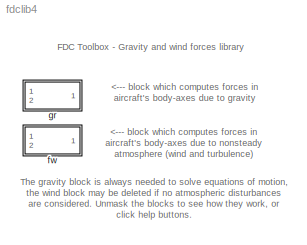
MODEL fdclib4
KIND library
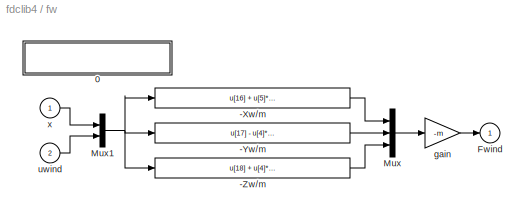
BLOCK [SubSystem] fw
  MaskDescription = Forces due to non-steady atmosphere.
  MaskDisplay = disp('Fwind')
  MaskHelp = eval('fdchelp fwind')
  MaskIconFrame = on
  MaskIconOpaque = on
  MaskIconRotate = none
  MaskIconUnits = autoscale
  MaskPromptString = Mass of the aircraft [kg]:
  MaskStyleString = edit
  MaskType = fwind
  MaskValueString = GM1(10)
  MaskVariables = m=@1;
  Ports = [2, 1, 0, 0, 0]
  ShowPortLabels = off
BLOCK [Fcn] fw/-Xw//m
  Expr = u[16] + u[5]*u[15] - u[6]*u[14]
BLOCK [Fcn] fw/-Yw//m
  Expr = u[17] - u[4]*u[15] + u[6]*u[13]
BLOCK [Fcn] fw/-Zw//m
  Expr = u[18] + u[4]*u[14] - u[5]*u[13]
BLOCK [SubSystem] fw/0
  MaskDisplay = disp('FWIND\\nM.O. Rauw, Dec. 1996')
  MaskIconFrame = on
  MaskIconOpaque = on
  MaskIconRotate = none
  MaskIconUnits = autoscale
  OpenFcn = fdchelp fwind
  Ports = [0, 0, 0, 0, 0]
  ShowPortLabels = off
BLOCK [Outport] fw/Fwind
  InitialOutput = 0
  OutputWhenDisabled = held
  Port = 1
BLOCK [Mux] fw/Mux
  Inputs = 3
  Ports = [3, 1, 0, 0, 0]
BLOCK [Mux] fw/Mux1
  Inputs = [12 6]
  Ports = [2, 1, 0, 0, 0]
BLOCK [Gain] fw/gain
  Gain = -m
BLOCK [Inport] fw/uwind
  Port = 2
  PortWidth = -1
  SampleTime = -1
BLOCK [Inport] fw/x
  Port = 1
  PortWidth = -1
  SampleTime = -1
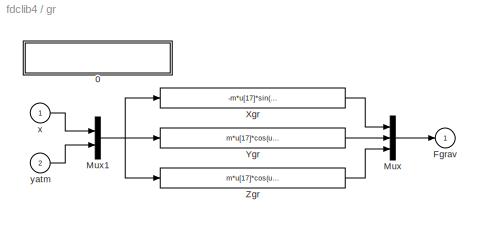
BLOCK [SubSystem] gr
  MaskDescription = Gravity forces.
  MaskDisplay = disp('Gravity')
  MaskHelp = eval('fdchelp gravity')
  MaskIconFrame = on
  MaskIconOpaque = on
  MaskIconRotate = none
  MaskIconUnits = autoscale
  MaskPromptString = Mass of the aircraft [kg]:
  MaskStyleString = edit
  MaskType = Gravity
  MaskValueString = GM1(10)
  MaskVariables = m=@1;
  Ports = [2, 1, 0, 0, 0]
  ShowPortLabels = off
BLOCK [SubSystem] gr/0
  MaskDisplay = disp('GRAVITY\\nM.O. Rauw, October 1997')
  MaskIconFrame = on
  MaskIconOpaque = on
  MaskIconRotate = none
  MaskIconUnits = autoscale
  OpenFcn = fdchelp gravity
  Ports = [0, 0, 0, 0, 0]
  ShowPortLabels = off
BLOCK [Outport] gr/Fgrav
  InitialOutput = 0
  OutputWhenDisabled = held
  Port = 1
BLOCK [Mux] gr/Mux
  Inputs = 3
  Ports = [3, 1, 0, 0, 0]
BLOCK [Mux] gr/Mux1
  Inputs = [12 5]
  Ports = [2, 1, 0, 0, 0]
BLOCK [Fcn] gr/Xgr
  Expr = -m*u[17]*sin(u[8])
BLOCK [Fcn] gr/Ygr
  Expr = m*u[17]*cos(u[8])*sin(u[9])
BLOCK [Fcn] gr/Zgr
  Expr = m*u[17]*cos(u[8])*cos(u[9])
BLOCK [Inport] gr/x
  Port = 1
  PortWidth = -1
  SampleTime = -1
BLOCK [Inport] gr/yatm
  Port = 2
  PortWidth = -1
  SampleTime = -1
LINE fw/-Xw//m:1 -> fw/Mux:1
LINE fw/-Yw//m:1 -> fw/Mux:2
LINE fw/-Zw//m:1 -> fw/Mux:3
NET fw/Mux1:1 -> fw/-Xw//m:1, fw/-Yw//m:1, fw/-Zw//m:1
LINE fw/Mux:1 -> fw/gain:1
LINE fw/gain:1 -> fw/Fwind:1
LINE fw/uwind:1 -> fw/Mux1:2
LINE fw/x:1 -> fw/Mux1:1
NET gr/Mux1:1 -> gr/Xgr:1, gr/Ygr:1, gr/Zgr:1
LINE gr/Mux:1 -> gr/Fgrav:1
LINE gr/Xgr:1 -> gr/Mux:1
LINE gr/Ygr:1 -> gr/Mux:2
LINE gr/Zgr:1 -> gr/Mux:3
LINE gr/x:1 -> gr/Mux1:1
LINE gr/yatm:1 -> gr/Mux1:2
note: NET lines group one-source signal fan-out (src -> all destinations, sorted); 1:1 wires keep LINE
